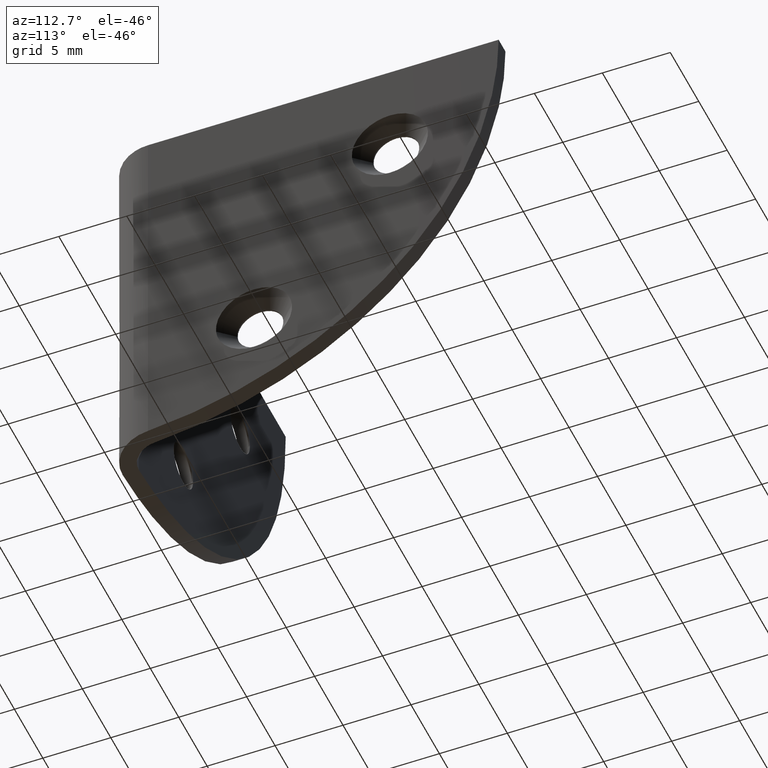
[diagram: clean part render]
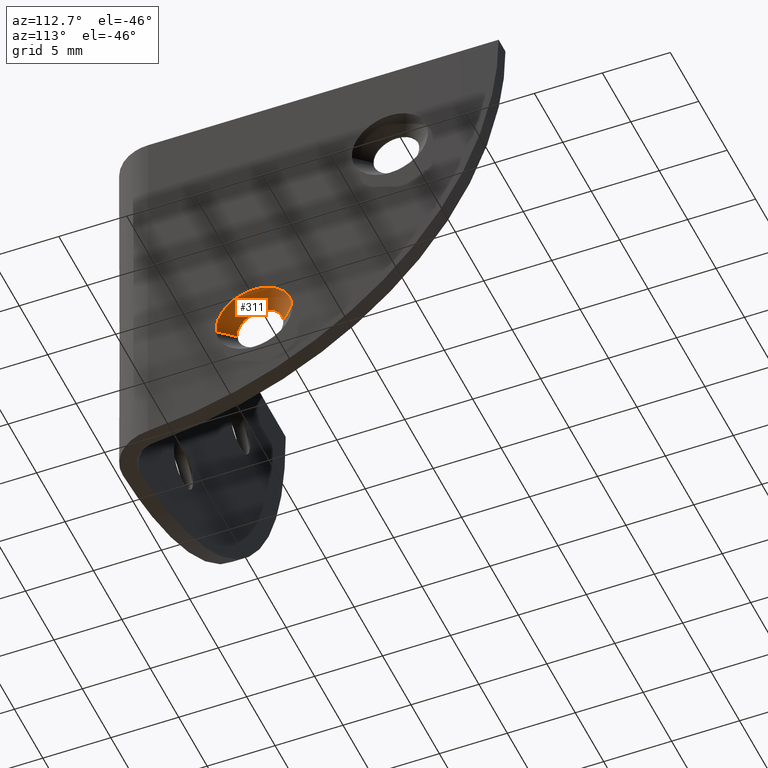
[diagram: same view with one face highlighted and labeled with its STEP entity id]
A machine part, auxiliary view. The second image highlights one B-rep face of the part: STEP entity #311.
In plain terms, the highlighted face is a freeform B-spline surface patch.
Its self-contained STEP definition (entity closure, byte-faithful):
#116=CARTESIAN_POINT('',(-1.100000000000176,9.303170833868963,7.896217626896327));
#117=VERTEX_POINT('',#116);
#161=CARTESIAN_POINT('',(-1.099999999996066,12.694759467347980,8.133380462768887));
#162=VERTEX_POINT('',#161);
#178=CARTESIAN_POINT('',(-1.100000000000200,11.0,9.700000000000001));
#179=VERTEX_POINT('',#178);
#180=CARTESIAN_POINT('',(-1.100000000000200,11.0,9.700000000000001));
#181=CARTESIAN_POINT('',(-1.100000000000200,12.571463835760863,9.700000000000001));
#182=CARTESIAN_POINT('',(-1.099999999996065,12.694759467347984,8.133380462768889));
#190=(BOUNDED_CURVE()B_SPLINE_CURVE(2,(#180,#181,#182),.UNSPECIFIED.,.F.,.U.)B_SPLINE_CURVE_WITH_KNOTS((3,3),(0.0,0.236331300626450),.UNSPECIFIED.)CURVE()GEOMETRIC_REPRESENTATION_ITEM()RATIONAL_B_SPLINE_CURVE((1.0,0.723120658612598,0.969723356158632))REPRESENTATION_ITEM(''));
#191=EDGE_CURVE('',#179,#162,#190,.T.);
#193=CARTESIAN_POINT('',(-1.100000000000175,9.303170833868963,7.896217626896327));
#194=CARTESIAN_POINT('',(-1.100000000000200,9.299999999999999,7.948060374647219));
#195=CARTESIAN_POINT('',(-1.100000000000200,9.299999999999999,8.0));
#196=CARTESIAN_POINT('',(-1.100000000000200,9.299999999999999,9.700000000000003));
#197=CARTESIAN_POINT('',(-1.100000000000200,11.0,9.700000000000001));
#205=(BOUNDED_CURVE()B_SPLINE_CURVE(2,(#193,#194,#195,#196,#197),.UNSPECIFIED.,.F.,.U.)B_SPLINE_CURVE_WITH_KNOTS((3,2,3),(0.739332976895745,0.750000000000000,1.0),.UNSPECIFIED.)CURVE()GEOMETRIC_REPRESENTATION_ITEM()RATIONAL_B_SPLINE_CURVE((0.976072073079037,0.987502805071349,1.0,0.707106781186548,1.0))REPRESENTATION_ITEM(''));
#206=EDGE_CURVE('',#117,#179,#205,.T.);
#245=CARTESIAN_POINT('',(-1.127500000000205,12.667344240668649,8.131222837604822));
#246=CARTESIAN_POINT('',(-1.127500000000205,12.536121403063829,9.798567078273475));
#247=CARTESIAN_POINT('',(-1.127500000000205,10.868777162395180,9.667344240668653));
#248=CARTESIAN_POINT('',(-1.127500000000205,9.201432921726525,9.536121403063831));
#249=CARTESIAN_POINT('',(-1.127500000000205,9.332655759331347,7.868777162395179));
#250=CARTESIAN_POINT('',(0.028187500000002,13.819469141797560,8.221897033798813));
#251=CARTESIAN_POINT('',(0.028187500000002,13.597572107998751,11.041366175596377));
#252=CARTESIAN_POINT('',(0.028187500000002,10.778102966201191,10.819469141797560));
#253=CARTESIAN_POINT('',(0.028187500000002,7.958633824403625,10.597572107998754));
#254=CARTESIAN_POINT('',(0.028187500000002,8.180530858202436,7.778102966201188));
#262=(BOUNDED_SURFACE()B_SPLINE_SURFACE(2,1,((#245,#250),(#246,#251),(#247,#252),(#248,#253),(#249,#254)),.UNSPECIFIED.,.F.,.F.,.U.)B_SPLINE_SURFACE_WITH_KNOTS((3,2,3),(2,2),(0.0,4.685894477736569,9.371788955473138),(0.0,1.0),.UNSPECIFIED.)GEOMETRIC_REPRESENTATION_ITEM()RATIONAL_B_SPLINE_SURFACE(((1.0,1.0),(0.707106781186548,0.707106781186548),(1.0,1.0),(0.707106781186548,0.707106781186548),(1.0,1.0)))REPRESENTATION_ITEM('')SURFACE());
#263=ORIENTED_EDGE('',*,*,#191,.T.);
#264=CARTESIAN_POINT('',(1.360193E-011,13.791368534458350,8.219685468142913));
#265=VERTEX_POINT('',#264);
#266=CARTESIAN_POINT('',(-1.099999999996066,12.694759467347980,8.133380462768887));
#267=CARTESIAN_POINT('',(1.360193E-011,13.791368534458350,8.219685468142913));
#268=QUASI_UNIFORM_CURVE('',1,(#266,#267),.UNSPECIFIED.,.F.,.U.);
#269=EDGE_CURVE('',#162,#265,#268,.T.);
#270=ORIENTED_EDGE('',*,*,#269,.T.);
#271=CARTESIAN_POINT('',(-3.343175E-015,11.0,10.800000000000200));
#272=VERTEX_POINT('',#271);
#273=CARTESIAN_POINT('',(-3.343175E-015,11.0,10.800000000000200));
#274=CARTESIAN_POINT('',(-3.343175E-015,13.588293376449954,10.800000000000200));
#275=CARTESIAN_POINT('',(1.360193E-011,13.791368534458346,8.219685468142913));
#283=(BOUNDED_CURVE()B_SPLINE_CURVE(2,(#273,#274,#275),.UNSPECIFIED.,.F.,.U.)B_SPLINE_CURVE_WITH_KNOTS((3,3),(0.0,0.236331300620010),.UNSPECIFIED.)CURVE()GEOMETRIC_REPRESENTATION_ITEM()RATIONAL_B_SPLINE_CURVE((1.0,0.723120658620143,0.969723356145192))REPRESENTATION_ITEM(''));
#284=EDGE_CURVE('',#272,#265,#283,.T.);
#285=ORIENTED_EDGE('',*,*,#284,.F.);
#286=CARTESIAN_POINT('',(1.360180E-011,8.208631465541654,7.780314531857087));
#287=VERTEX_POINT('',#286);
#288=CARTESIAN_POINT('',(1.360180E-011,8.208631465541654,7.780314531857087));
#289=CARTESIAN_POINT('',(-3.343175E-015,8.199999999999802,7.889987700274173));
#290=CARTESIAN_POINT('',(-3.343175E-015,8.199999999999800,8.0));
#291=CARTESIAN_POINT('',(-3.343175E-015,8.199999999999800,10.800000000000200));
#292=CARTESIAN_POINT('',(-3.343175E-015,11.0,10.800000000000200));
#300=(BOUNDED_CURVE()B_SPLINE_CURVE(2,(#288,#289,#290,#291,#292),.UNSPECIFIED.,.F.,.U.)B_SPLINE_CURVE_WITH_KNOTS((3,2,3),(0.736331300620010,0.750000000000000,1.0),.UNSPECIFIED.)CURVE()GEOMETRIC_REPRESENTATION_ITEM()RATIONAL_B_SPLINE_CURVE((0.969723356145193,0.983986122566405,1.0,0.707106781186547,1.0))REPRESENTATION_ITEM(''));
#301=EDGE_CURVE('',#287,#272,#300,.T.);
#302=ORIENTED_EDGE('',*,*,#301,.F.);
#303=CARTESIAN_POINT('',(-1.100000000000176,9.303170833868963,7.896217626896327));
#304=CARTESIAN_POINT('',(1.360180E-011,8.208631465541654,7.780314531857087));
#305=QUASI_UNIFORM_CURVE('',1,(#303,#304),.UNSPECIFIED.,.F.,.U.);
#306=EDGE_CURVE('',#117,#287,#305,.T.);
#307=ORIENTED_EDGE('',*,*,#306,.F.);
#308=ORIENTED_EDGE('',*,*,#206,.T.);
#309=EDGE_LOOP('',(#263,#270,#285,#302,#307,#308));
#310=FACE_OUTER_BOUND('',#309,.T.);
#311=ADVANCED_FACE('',(#310),#262,.F.);